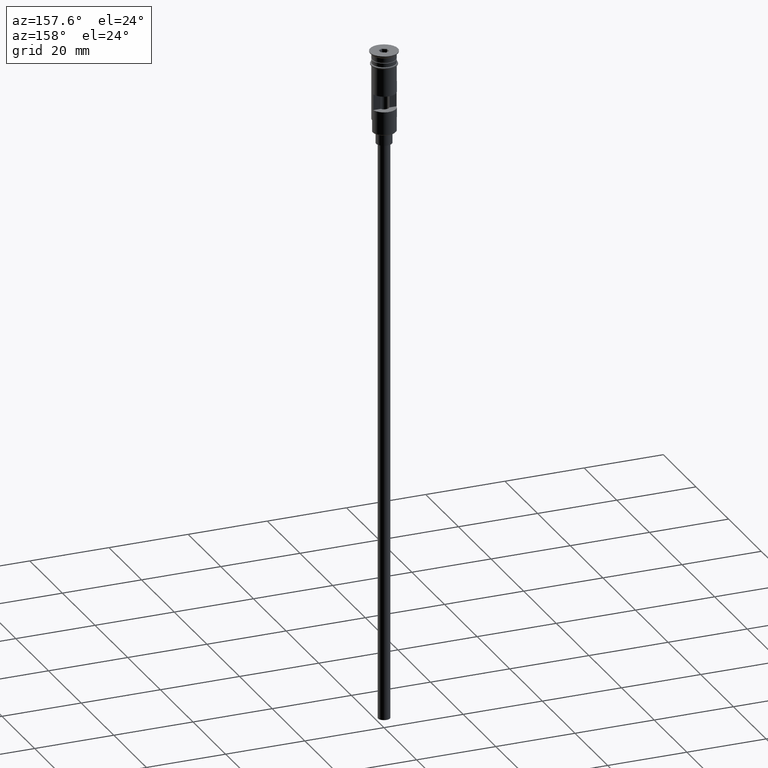
[diagram: clean part render]
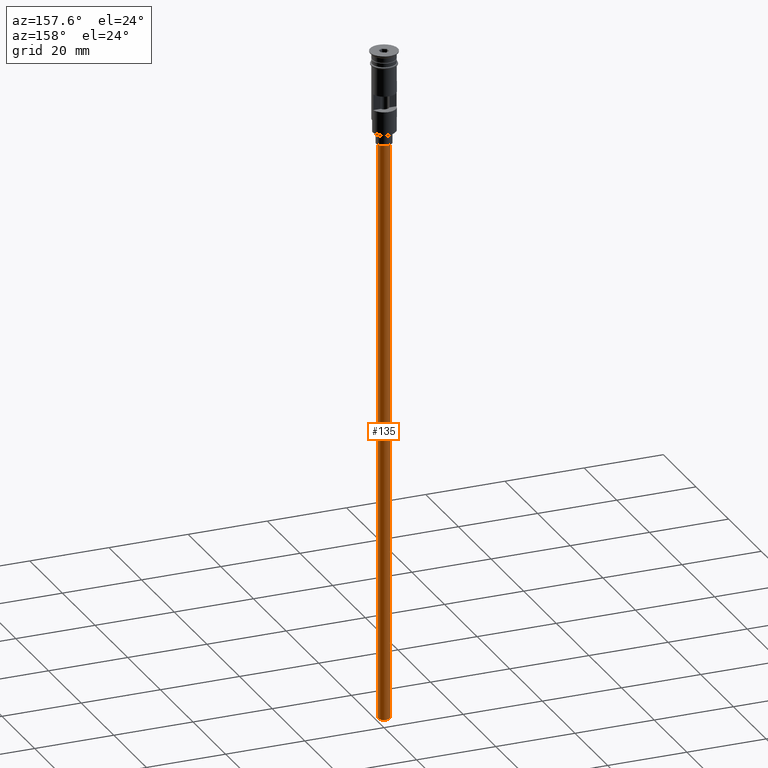
[diagram: same view with one face highlighted and labeled with its STEP entity id]
A machine part, auxiliary view. The second image highlights one B-rep face of the part: STEP entity #135.
In plain terms, the highlighted cylindrical surface (edge-blend (fillet) strip) has radius 1.5 mm, axis along (-0, -0, 1).
Its self-contained STEP definition (entity closure, byte-faithful):
#16 = DIRECTION ( 'NONE',  ( 0.000000000000000000, 0.000000000000000000, -1.000000000000000000 ) ) ;
#25 = VERTEX_POINT ( 'NONE', #1598 ) ;
#53 = VERTEX_POINT ( 'NONE', #786 ) ;
#119 = CARTESIAN_POINT ( 'NONE',  ( 0.000000000000000000, 0.000000000000000000, -23.50000000000000000 ) ) ;
#135 = ADVANCED_FACE ( 'NONE', ( #1135 ), #273, .T. ) ;
#161 = ORIENTED_EDGE ( 'NONE', *, *, #198, .T. ) ;
#176 = DIRECTION ( 'NONE',  ( -0.000000000000000000, -0.000000000000000000, 1.000000000000000000 ) ) ;
#177 = VERTEX_POINT ( 'NONE', #899 ) ;
#198 = EDGE_CURVE ( 'NONE', #25, #53, #205, .T. ) ;
#205 = CIRCLE ( 'NONE', #928, 1.500000000000000222 ) ;
#210 = CIRCLE ( 'NONE', #1308, 1.500000000000000222 ) ;
#273 = CYLINDRICAL_SURFACE ( 'NONE', #882, 1.500000000000000222 ) ;
#401 = EDGE_CURVE ( 'NONE', #177, #25, #478, .T. ) ;
#412 = DIRECTION ( 'NONE',  ( -1.000000000000000000, 0.000000000000000000, 0.000000000000000000 ) ) ;
#478 = LINE ( 'NONE', #952, #1413 ) ;
#599 = CARTESIAN_POINT ( 'NONE',  ( 1.500000000000000222, 0.000000000000000000, -170.4999999999999716 ) ) ;
#653 = DIRECTION ( 'NONE',  ( 1.000000000000000000, 0.000000000000000000, 0.000000000000000000 ) ) ;
#685 = ORIENTED_EDGE ( 'NONE', *, *, #1234, .F. ) ;
#736 = VECTOR ( 'NONE', #1464, 1000.000000000000000 ) ;
#786 = CARTESIAN_POINT ( 'NONE',  ( 1.500000000000000222, 0.000000000000000000, -23.50000000000000000 ) ) ;
#808 = ORIENTED_EDGE ( 'NONE', *, *, #923, .F. ) ;
#882 = AXIS2_PLACEMENT_3D ( 'NONE', #1247, #176, #653 ) ;
#899 = CARTESIAN_POINT ( 'NONE',  ( -1.500000000000000222, 1.836970198721030181E-16, -170.4999999999999716 ) ) ;
#923 = EDGE_CURVE ( 'NONE', #177, #1291, #210, .T. ) ;
#928 = AXIS2_PLACEMENT_3D ( 'NONE', #119, #1152, #1011 ) ;
#952 = CARTESIAN_POINT ( 'NONE',  ( -1.500000000000000222, 1.836970198721030181E-16, -170.4999999999999716 ) ) ;
#955 = LINE ( 'NONE', #599, #736 ) ;
#1011 = DIRECTION ( 'NONE',  ( -1.000000000000000000, 0.000000000000000000, 0.000000000000000000 ) ) ;
#1040 = ORIENTED_EDGE ( 'NONE', *, *, #401, .T. ) ;
#1135 = FACE_OUTER_BOUND ( 'NONE', #1331, .T. ) ;
#1152 = DIRECTION ( 'NONE',  ( 0.000000000000000000, 0.000000000000000000, -1.000000000000000000 ) ) ;
#1234 = EDGE_CURVE ( 'NONE', #1291, #53, #955, .T. ) ;
#1247 = CARTESIAN_POINT ( 'NONE',  ( 0.000000000000000000, 0.000000000000000000, -170.4999999999999716 ) ) ;
#1291 = VERTEX_POINT ( 'NONE', #1531 ) ;
#1308 = AXIS2_PLACEMENT_3D ( 'NONE', #1516, #16, #412 ) ;
#1331 = EDGE_LOOP ( 'NONE', ( #808, #1040, #161, #685 ) ) ;
#1413 = VECTOR ( 'NONE', #1461, 1000.000000000000000 ) ;
#1461 = DIRECTION ( 'NONE',  ( -0.000000000000000000, -0.000000000000000000, 1.000000000000000000 ) ) ;
#1464 = DIRECTION ( 'NONE',  ( -0.000000000000000000, -0.000000000000000000, 1.000000000000000000 ) ) ;
#1516 = CARTESIAN_POINT ( 'NONE',  ( 0.000000000000000000, 0.000000000000000000, -170.4999999999999716 ) ) ;
#1531 = CARTESIAN_POINT ( 'NONE',  ( 1.500000000000000222, 0.000000000000000000, -170.4999999999999716 ) ) ;
#1598 = CARTESIAN_POINT ( 'NONE',  ( -1.500000000000000222, 1.836970198721030181E-16, -23.50000000000000000 ) ) ;